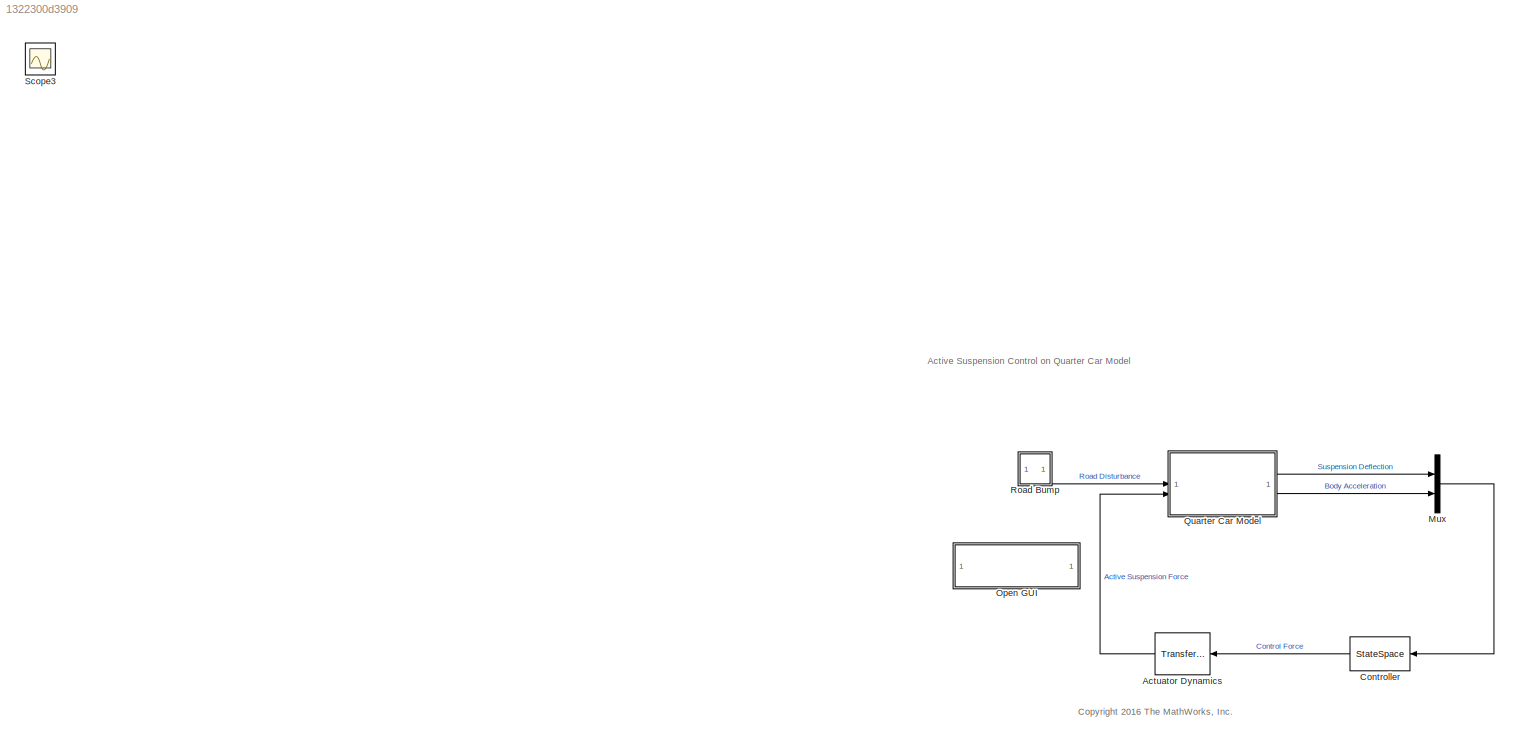
MODEL slx_1322300d3909
KIND model
CONFIG AbsTol = auto
CONFIG EnableMultiTasking = on
CONFIG FixedStep = auto
CONFIG MaxStep = 0.2
CONFIG MinStep = auto
CONFIG RelTol = 1e-3
CONFIG SampleTimeConstraint = Unconstrained
CONFIG SolverName = ode23t
CONFIG StartTime = 0.0
CONFIG StopTime = 2
WORKSPACE source: MATLAB code (in-file)
WORKSPACE Mb = 300
WORKSPACE Mw = 60
WORKSPACE Bs = 1000
WORKSPACE Ks = 16000
WORKSPACE Kt = 190000
WORKSPACE Ta = 60
BLOCK [Reference] Actuator Dynamics  REF=simulink_extras/Additional
Linear/Transfer Fcn
(with initial states)
  NameLocation = top
  SourceBlock = simulink_extras/Additional\nLinear/Transfer Fcn\n(with initial states)
  SourceType = Transfer Function with Initial States
BLOCK [StateSpace] Controller
  A = eye(2)
  B = eye(2)
  C = [0 0]
  D = [0 0]
  InitialCondition = 0
  NameLocation = top
BLOCK [Mux] Mux
  DisplayOption = bar
  Inputs = 2
BLOCK [SubSystem] Open GUI
  OpenFcn = Wroad = ss(0.07);\nHandlingTarget = 0.044444 * tf([1/8 1],[1/80 1]);\nComfortTarget = 0.6667 * tf([1/0.45 1],[1/150 1]);\nWact = tf(0.1684*[1 500],[1 50]);\ncontrolSystemTuner('SessionFileForActiveSuspensionQuarterCar');
  RTWMemSecDataConstants = Default
  RTWMemSecDataInternal = Default
  RTWMemSecDataParameters = Default
  RTWMemSecFuncExecute = Default
  RTWMemSecFuncInitTerm = Default
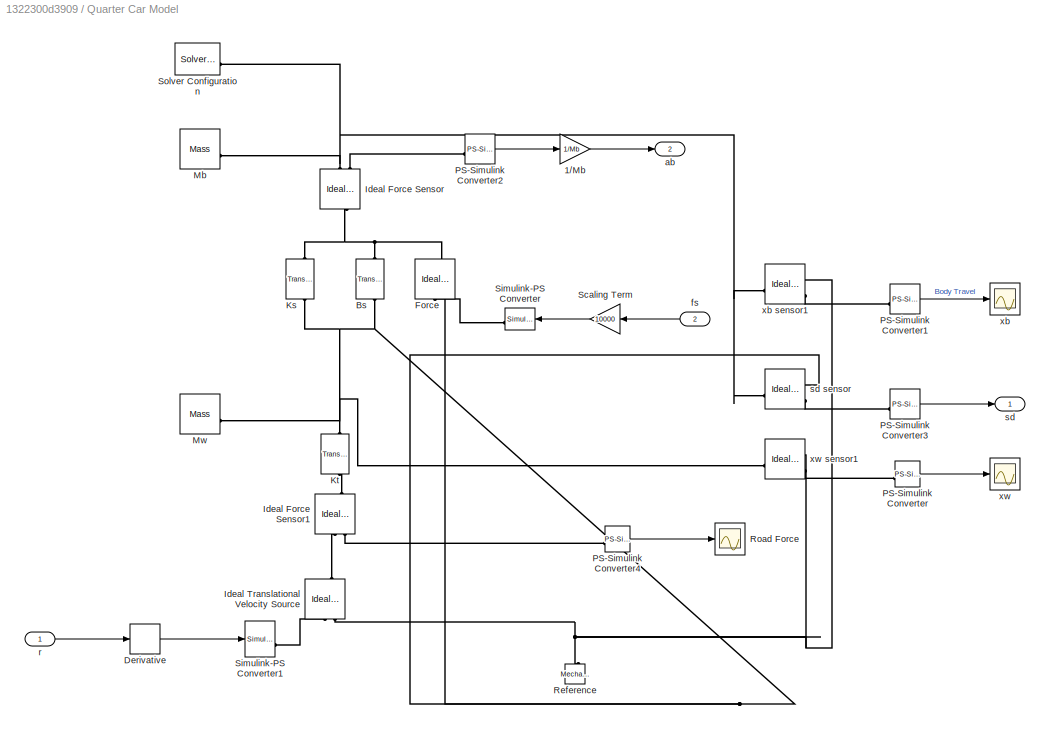
BLOCK [SubSystem] Quarter Car Model
BLOCK [Gain] Quarter Car Model/1//Mb
  Gain = 1/Mb
BLOCK [Reference] Quarter Car Model/Bs  REF=fl_lib/Mechanical/Translational
Elements/Translational Damper
  NameLocation = left
  SourceBlock = fl_lib/Mechanical/Translational\nElements/Translational Damper
  SourceType = Translational Damper
BLOCK [Derivative] Quarter Car Model/Derivative
  CoefficientInTFapproximation = 1e-4
BLOCK [Reference] Quarter Car Model/Force  REF=fl_lib/Mechanical/Mechanical Sources/Ideal Force Source
  NameLocation = right
  SourceBlock = fl_lib/Mechanical/Mechanical Sources/Ideal Force Source
  SourceType = Ideal Force Source
BLOCK [Reference] Quarter Car Model/Ideal Force Sensor  REF=fl_lib/Mechanical/Mechanical Sensors/Ideal Force Sensor
  NameLocation = right
  SourceBlock = fl_lib/Mechanical/Mechanical Sensors/Ideal Force Sensor
  SourceType = Ideal Force Sensor
BLOCK [Reference] Quarter Car Model/Ideal Force Sensor1  REF=fl_lib/Mechanical/Mechanical Sensors/Ideal Force Sensor
  NameLocation = left
  SourceBlock = fl_lib/Mechanical/Mechanical Sensors/Ideal Force Sensor
  SourceType = Ideal Force Sensor
BLOCK [Reference] Quarter Car Model/Ideal Translational Velocity Source  REF=fl_lib/Mechanical/Mechanical Sources/Ideal Translational
Velocity Source
  NameLocation = right
  SourceBlock = fl_lib/Mechanical/Mechanical Sources/Ideal Translational\nVelocity Source
  SourceType = Ideal Translational\nVelocity Source
BLOCK [Reference] Quarter Car Model/Ks  REF=fl_lib/Mechanical/Translational
Elements/Translational Spring
  NameLocation = left
  SourceBlock = fl_lib/Mechanical/Translational\nElements/Translational Spring
  SourceType = Translational Spring
BLOCK [Reference] Quarter Car Model/Kt  REF=fl_lib/Mechanical/Translational
Elements/Translational Spring
  NameLocation = left
  SourceBlock = fl_lib/Mechanical/Translational\nElements/Translational Spring
  SourceType = Translational Spring
BLOCK [Reference] Quarter Car Model/Mb  REF=fl_lib/Mechanical/Translational
Elements/Mass
  SourceBlock = fl_lib/Mechanical/Translational\nElements/Mass
  SourceType = Mass
BLOCK [Reference] Quarter Car Model/Mw  REF=fl_lib/Mechanical/Translational
Elements/Mass
  SourceBlock = fl_lib/Mechanical/Translational\nElements/Mass
  SourceType = Mass
BLOCK [Reference] Quarter Car Model/PS-Simulink Converter  REF=nesl_utility/PS-Simulink
Converter
  SourceBlock = nesl_utility/PS-Simulink\nConverter
  SourceType = PS-Simulink\nConverter
BLOCK [Reference] Quarter Car Model/PS-Simulink Converter1  REF=nesl_utility/PS-Simulink
Converter
  SourceBlock = nesl_utility/PS-Simulink\nConverter
  SourceType = PS-Simulink\nConverter
BLOCK [Reference] Quarter Car Model/PS-Simulink Converter2  REF=nesl_utility/PS-Simulink
Converter
  SourceBlock = nesl_utility/PS-Simulink\nConverter
  SourceType = PS-Simulink\nConverter
BLOCK [Reference] Quarter Car Model/PS-Simulink Converter3  REF=nesl_utility/PS-Simulink
Converter
  SourceBlock = nesl_utility/PS-Simulink\nConverter
  SourceType = PS-Simulink\nConverter
BLOCK [Reference] Quarter Car Model/PS-Simulink Converter4  REF=nesl_utility/PS-Simulink
Converter
  SourceBlock = nesl_utility/PS-Simulink\nConverter
  SourceType = PS-Simulink\nConverter
BLOCK [Reference] Quarter Car Model/Reference  REF=fl_lib/Mechanical/Translational
Elements/Mechanical
Translational
Reference
  NameLocation = right
  SourceBlock = fl_lib/Mechanical/Translational\nElements/Mechanical\nTranslational\nReference
  SourceType = Mechanical\nTranslational\nReference
BLOCK [Scope] Quarter Car Model/Road Force
  Floating = off
  NumInputPorts = 1
  ScopeSpecificationString = C++SS(StrPVP('Location','[188, 365, 512, 604]'),StrPVP('Open','off'),MxPVP('AxesTitles',54,'struct(''axes1'',''%<SignalLabel>'')'),MxPVP('ScopeGraphics',57,'struct(''FigureColor'',''[0.5 0.5 0.5]'',''AxesColor'',''[0 0 0]'',''AxesTickColor'',''[1 1 1]'',''LineColors'',''[1 1 0;1 0 1;0 1 1;1 0 0;0 1 0;0 0 1]'',''LineStyles'',''-|-|-|-|-|-'',''LineWidths'',''[0.5 0.5 0.5 0.5 0.5 0.5]'',''MarkerStyle...<+196ch>
BLOCK [Gain] Quarter Car Model/Scaling Term
  Gain = 10000
  NameLocation = top
BLOCK [Reference] Quarter Car Model/Simulink-PS Converter  REF=nesl_utility/Simulink-PS
Converter
  NameLocation = top
  SourceBlock = nesl_utility/Simulink-PS\nConverter
  SourceType = Simulink-PS\nConverter
BLOCK [Reference] Quarter Car Model/Simulink-PS Converter1  REF=nesl_utility/Simulink-PS
Converter
  SourceBlock = nesl_utility/Simulink-PS\nConverter
  SourceType = Simulink-PS\nConverter
BLOCK [Reference] Quarter Car Model/Solver Configuration  REF=nesl_utility/Solver
Configuration
  SourceBlock = nesl_utility/Solver\nConfiguration
  SourceType = Solver\nConfiguration
BLOCK [Outport] Quarter Car Model/ab
  Port = 2
BLOCK [Inport] Quarter Car Model/fs
  Port = 2
BLOCK [Inport] Quarter Car Model/r
BLOCK [Outport] Quarter Car Model/sd
BLOCK [Reference] Quarter Car Model/sd sensor  REF=fl_lib/Mechanical/Mechanical Sensors/Ideal Translational
Motion Sensor
  SourceBlock = fl_lib/Mechanical/Mechanical Sensors/Ideal Translational\nMotion Sensor
  SourceType = Ideal Translational\nMotion Sensor
BLOCK [Scope] Quarter Car Model/xb
  Floating = off
  NumInputPorts = 1
  ScopeSpecificationString = C++SS(StrPVP('Location','[1232, 148, 1556, 387]'),StrPVP('Open','off'),MxPVP('AxesTitles',54,'struct(''axes1'',''%<SignalLabel>'')'),MxPVP('ScopeGraphics',57,'struct(''FigureColor'',''[0.5 0.5 0.5]'',''AxesColor'',''[0 0 0]'',''AxesTickColor'',''[1 1 1]'',''LineColors'',''[1 1 0;1 0 1;0 1 1;1 0 0;0 1 0;0 0 1]'',''LineStyles'',''-|-|-|-|-|-'',''LineWidths'',''[0.5 0.5 0.5 0.5 0.5 0.5]'',''MarkerSty...<+268ch>
BLOCK [Reference] Quarter Car Model/xb sensor1  REF=fl_lib/Mechanical/Mechanical Sensors/Ideal Translational
Motion Sensor
  SourceBlock = fl_lib/Mechanical/Mechanical Sensors/Ideal Translational\nMotion Sensor
  SourceType = Ideal Translational\nMotion Sensor
BLOCK [Scope] Quarter Car Model/xw
  Floating = off
  NumInputPorts = 1
  ScopeSpecificationString = C++SS(StrPVP('Location','[188, 365, 512, 604]'),StrPVP('Open','off'),MxPVP('AxesTitles',54,'struct(''axes1'',''%<SignalLabel>'')'),MxPVP('ScopeGraphics',57,'struct(''FigureColor'',''[0.5 0.5 0.5]'',''AxesColor'',''[0 0 0]'',''AxesTickColor'',''[1 1 1]'',''LineColors'',''[1 1 0;1 0 1;0 1 1;1 0 0;0 1 0;0 0 1]'',''LineStyles'',''-|-|-|-|-|-'',''LineWidths'',''[0.5 0.5 0.5 0.5 0.5 0.5]'',''MarkerStyle...<+164ch>
BLOCK [Reference] Quarter Car Model/xw sensor1  REF=fl_lib/Mechanical/Mechanical Sensors/Ideal Translational
Motion Sensor
  SourceBlock = fl_lib/Mechanical/Mechanical Sensors/Ideal Translational\nMotion Sensor
  SourceType = Ideal Translational\nMotion Sensor
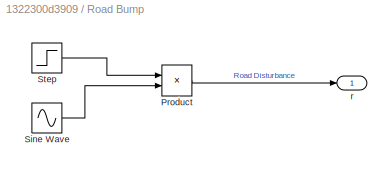
BLOCK [SubSystem] Road Bump
BLOCK [Product] Road Bump/Product
BLOCK [Sin] Road Bump/Sine Wave
  Amplitude = -0.025
  Bias = 0.025
  Frequency = 8*pi
  Phase = pi/2
  SampleTime = 0
BLOCK [Step] Road Bump/Step
  After = 0
  Before = 1
  SampleTime = 0
  Time = 0.25
BLOCK [Outport] Road Bump/r
BLOCK [Scope] Scope3
  Floating = off
  IOType = viewer
  NumInputPorts = 1
  ScopeSpecificationString = C++SS(StrPVP('Location','[2383, 375, 2707, 614]'),StrPVP('Open','off'),MxPVP('AxesTitles',54,'struct(''axes1'',''%<SignalLabel>'')'),MxPVP('ScopeGraphics',57,'struct(''FigureColor'',''[0.5 0.5 0.5]'',''AxesColor'',''[0 0 0]'',''AxesTickColor'',''[1 1 1]'',''LineColors'',''[1 1 0;1 0 1;0 1 1;1 0 0;0 1 0;0 0 1]'',''LineStyles'',''-|-|-|-|-|-'',''LineWidths'',''[0.5 0.5 0.5 0.5 0.5 0.5]'',''MarkerSty...<+245ch>
ANNOTATION (root): <copyright redacted>
ANNOTATION (root): Active Suspension Control on Quarter Car Model
LINE Actuator Dynamics:1 -> Quarter Car Model:2
LINE Controller:1 -> Actuator Dynamics:1
LINE Mux:1 -> Controller:1
LINE Quarter Car Model/1//Mb:1 -> Quarter Car Model/ab:1
LINE Quarter Car Model/Derivative:1 -> Quarter Car Model/Simulink-PS Converter1:1
LINE Quarter Car Model/PS-Simulink Converter1:1 -> Quarter Car Model/xb:1
LINE Quarter Car Model/PS-Simulink Converter2:1 -> Quarter Car Model/1//Mb:1
LINE Quarter Car Model/PS-Simulink Converter3:1 -> Quarter Car Model/sd:1
LINE Quarter Car Model/PS-Simulink Converter4:1 -> Quarter Car Model/Road Force:1
LINE Quarter Car Model/PS-Simulink Converter:1 -> Quarter Car Model/xw:1
LINE Quarter Car Model/Scaling Term:1 -> Quarter Car Model/Simulink-PS Converter:1
LINE Quarter Car Model/fs:1 -> Quarter Car Model/Scaling Term:1
LINE Quarter Car Model/r:1 -> Quarter Car Model/Derivative:1
LINE Quarter Car Model:1 -> Mux:1
LINE Quarter Car Model:2 -> Mux:2
LINE Road Bump/Product:1 -> Road Bump/r:1
LINE Road Bump/Sine Wave:1 -> Road Bump/Product:2
LINE Road Bump/Step:1 -> Road Bump/Product:1
LINE Road Bump:1 -> Quarter Car Model:1
PNET net1: Quarter Car Model/Bs:LConn1 -- Quarter Car Model/Force:LConn1 -- Quarter Car Model/Ideal Force Sensor:LConn1 -- Quarter Car Model/Ks:LConn1
PNET net2: Quarter Car Model/Bs:RConn1 -- Quarter Car Model/Force:RConn2 -- Quarter Car Model/Ks:RConn1 -- Quarter Car Model/Kt:LConn1 -- Quarter Car Model/Mw:LConn1 -- Quarter Car Model/sd sensor:RConn1 -- Quarter Car Model/xw sensor1:LConn1
PLINE Quarter Car Model/Force:RConn1 -- Quarter Car Model/Simulink-PS Converter:RConn1
PLINE Quarter Car Model/Ideal Force Sensor1:LConn1 -- Quarter Car Model/Kt:RConn1
PLINE Quarter Car Model/Ideal Force Sensor1:RConn1 -- Quarter Car Model/Ideal Translational Velocity Source:LConn1
PLINE Quarter Car Model/Ideal Force Sensor1:RConn2 -- Quarter Car Model/PS-Simulink Converter4:LConn1
PNET net3: Quarter Car Model/Ideal Force Sensor:RConn1 -- Quarter Car Model/Mb:LConn1 -- Quarter Car Model/Solver Configuration:RConn1 -- Quarter Car Model/sd sensor:LConn1 -- Quarter Car Model/xb sensor1:LConn1
PLINE Quarter Car Model/Ideal Force Sensor:RConn2 -- Quarter Car Model/PS-Simulink Converter2:LConn1
PLINE Quarter Car Model/Ideal Translational Velocity Source:RConn1 -- Quarter Car Model/Simulink-PS Converter1:RConn1
PNET net4: Quarter Car Model/Ideal Translational Velocity Source:RConn2 -- Quarter Car Model/Reference:LConn1 -- Quarter Car Model/xb sensor1:RConn1 -- Quarter Car Model/xw sensor1:RConn1
PLINE Quarter Car Model/PS-Simulink Converter1:LConn1 -- Quarter Car Model/xb sensor1:RConn3
PLINE Quarter Car Model/PS-Simulink Converter3:LConn1 -- Quarter Car Model/sd sensor:RConn3
PLINE Quarter Car Model/PS-Simulink Converter:LConn1 -- Quarter Car Model/xw sensor1:RConn3
note: PNET lines group multi-terminal physical nets as a canonical sorted terminal list (undirected conserving connections); 2-terminal nets keep the pairwise PLINE form
